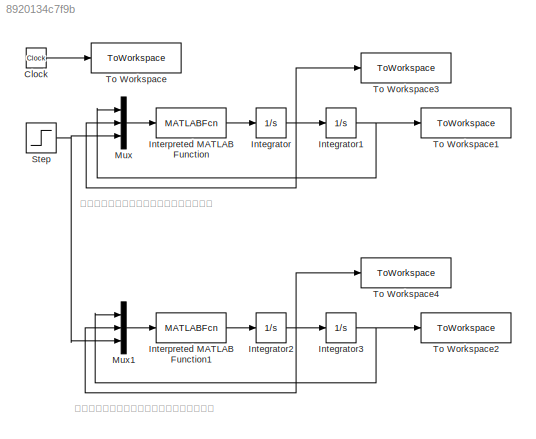
MODEL slx_8920134c7f9b
KIND model
CONFIG AbsTol = auto
CONFIG EnableMultiTasking = on
CONFIG FixedStep = 0.001
CONFIG MaxStep = auto
CONFIG MinStep = auto
CONFIG RelTol = 1e-3
CONFIG SampleTimeConstraint = Unconstrained
CONFIG SolverName = ode4
CONFIG StartTime = 0.0
CONFIG StopTime = 10
BLOCK [Clock] Clock
BLOCK [Integrator] Integrator
BLOCK [Integrator] Integrator1
BLOCK [Integrator] Integrator2
BLOCK [Integrator] Integrator3
BLOCK [MATLABFcn] Interpreted MATLAB Function
  MATLABFcn = (u(3) - c*u(2))/J
BLOCK [MATLABFcn] Interpreted MATLAB Function1
  MATLABFcn = (u(3) - M*g*l*sin(u(1)) - c*u(2))/J
BLOCK [Mux] Mux
  DisplayOption = bar
  Inputs = 3
BLOCK [Mux] Mux1
  DisplayOption = bar
  Inputs = 3
BLOCK [Step] Step
  After = u
  SampleTime = 0
  Time = 0
BLOCK [ToWorkspace] To Workspace
  FixptAsFi = on
  MaxDataPoints = inf
  SampleTime = -1
  VariableName = t
BLOCK [ToWorkspace] To Workspace1
  FixptAsFi = on
  MaxDataPoints = inf
  SampleTime = -1
  VariableName = y1
BLOCK [ToWorkspace] To Workspace2
  FixptAsFi = on
  MaxDataPoints = inf
  SampleTime = -1
  VariableName = y2
BLOCK [ToWorkspace] To Workspace3
  FixptAsFi = on
  MaxDataPoints = inf
  SampleTime = -1
  VariableName = dy1
BLOCK [ToWorkspace] To Workspace4
  FixptAsFi = on
  MaxDataPoints = inf
  SampleTime = -1
  VariableName = dy2
ANNOTATION (root): 水平面を回転するアーム（線形システム）
ANNOTATION (root): 鉛直面を回転するアーム（非線形システム）
LINE Clock:1 -> To Workspace:1
NET Integrator1:1 -> Mux:1, To Workspace1:1
NET Integrator2:1 -> Integrator3:1, Mux1:2, To Workspace4:1
NET Integrator3:1 -> Mux1:1, To Workspace2:1
NET Integrator:1 -> Integrator1:1, Mux:2, To Workspace3:1
LINE Interpreted MATLAB Function1:1 -> Integrator2:1
LINE Interpreted MATLAB Function:1 -> Integrator:1
LINE Mux1:1 -> Interpreted MATLAB Function1:1
LINE Mux:1 -> Interpreted MATLAB Function:1
NET Step:1 -> Mux1:3, Mux:3
note: NET lines group one-source signal fan-out (src -> all destinations, sorted); 1:1 wires keep LINE
